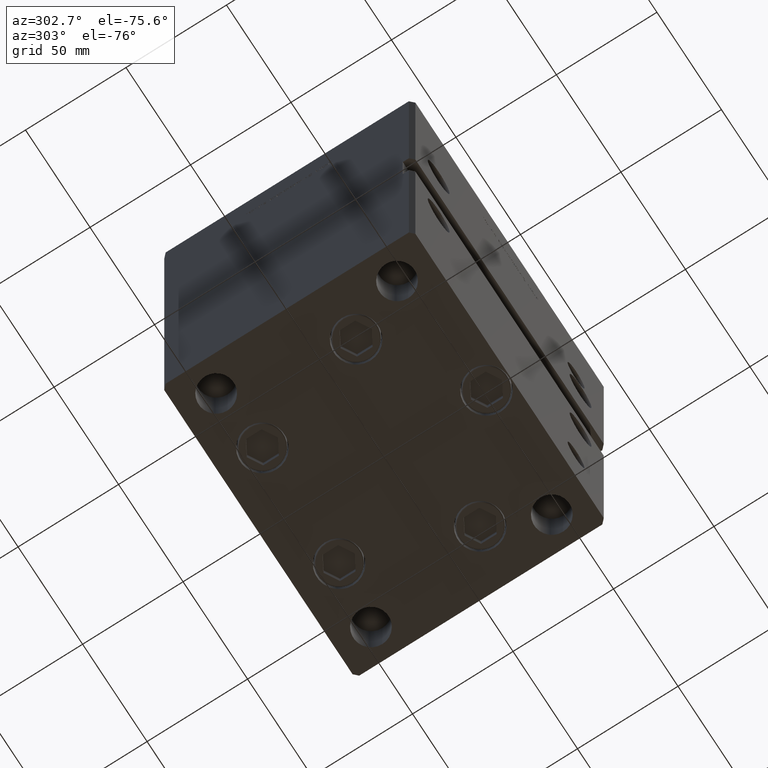
[diagram: clean part render]
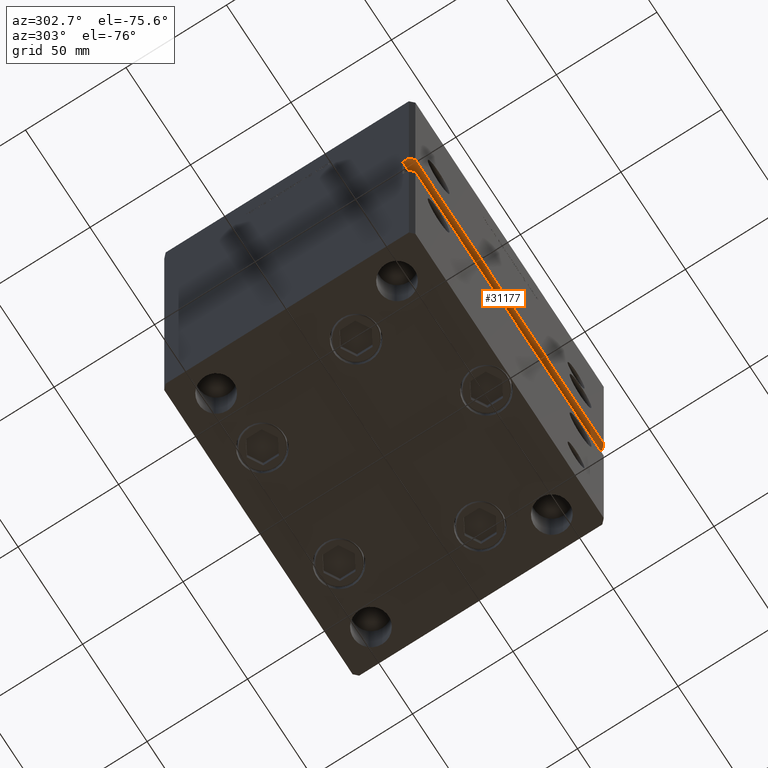
[diagram: same view with one face highlighted and labeled with its STEP entity id]
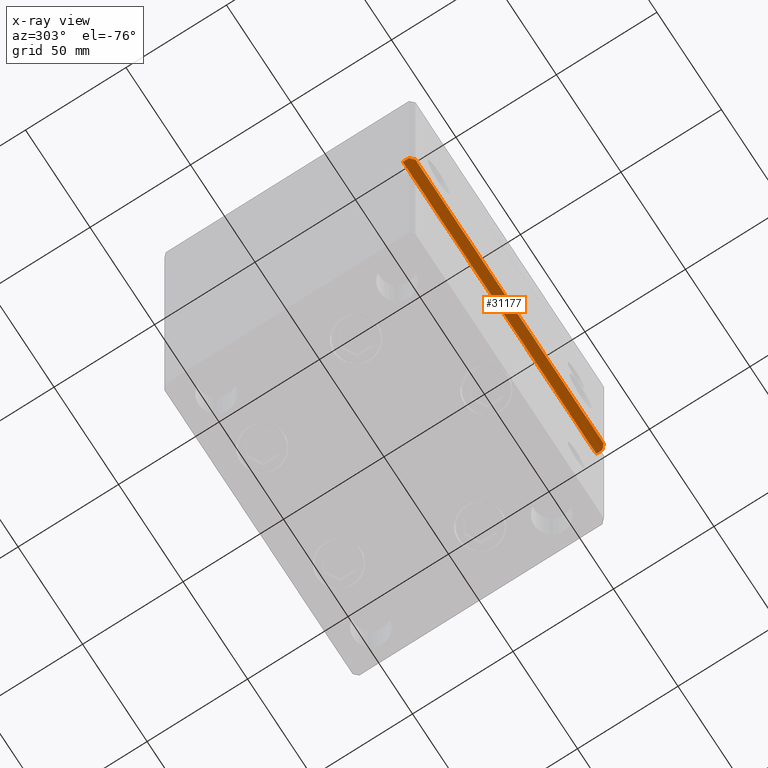
[diagram: x-ray of the same camera — body ghosted, the highlighted face saturated]
A machine part, auxiliary view. The second image highlights one B-rep face of the part: STEP entity #31177.
The next image is the same camera in x-ray: the body ghosted, the highlighted face saturated — about 8% of this face is hidden behind the body in this view.
In plain terms, the highlighted planar face has unit normal (0, 0, 1).
Its self-contained STEP definition (entity closure, byte-faithful):
#282 = LINE ( 'NONE', #17133, #50339 ) ;
#511 = CARTESIAN_POINT ( 'NONE',  ( -74.99999999999998579, -57.50000000000000000, 98.00000000000000000 ) ) ;
#2397 = CARTESIAN_POINT ( 'NONE',  ( 74.99999999999998579, -57.50000000000000000, 98.00000000000000000 ) ) ;
#3260 = LINE ( 'NONE', #19855, #39175 ) ;
#5137 = VERTEX_POINT ( 'NONE', #25410 ) ;
#5818 = AXIS2_PLACEMENT_3D ( 'NONE', #16791, #37709, #50033 ) ;
#6814 = CARTESIAN_POINT ( 'NONE',  ( -72.99999999999998579, -62.50000000000000000, 98.00000000000000000 ) ) ;
#8275 = EDGE_CURVE ( 'NONE', #46441, #25686, #26770, .T. ) ;
#8370 = ORIENTED_EDGE ( 'NONE', *, *, #9162, .T. ) ;
#8807 = LINE ( 'NONE', #511, #51154 ) ;
#9162 = EDGE_CURVE ( 'NONE', #9638, #28484, #10176, .T. ) ;
#9278 = FACE_OUTER_BOUND ( 'NONE', #34194, .T. ) ;
#9638 = VERTEX_POINT ( 'NONE', #30997 ) ;
#10176 = LINE ( 'NONE', #2397, #14206 ) ;
#10389 = VECTOR ( 'NONE', #14662, 1000.000000000000114 ) ;
#12928 = ORIENTED_EDGE ( 'NONE', *, *, #26286, .F. ) ;
#14206 = VECTOR ( 'NONE', #14718, 1000.000000000000000 ) ;
#14444 = DIRECTION ( 'NONE',  ( 0.7071067811865474617, -0.7071067811865474617, 0.000000000000000000 ) ) ;
#14662 = DIRECTION ( 'NONE',  ( -0.7071067811865474617, -0.7071067811865474617, 0.000000000000000000 ) ) ;
#14718 = DIRECTION ( 'NONE',  ( -0.000000000000000000, -1.000000000000000000, -0.000000000000000000 ) ) ;
#15015 = VECTOR ( 'NONE', #14444, 1000.000000000000114 ) ;
#15391 = EDGE_CURVE ( 'NONE', #48237, #25686, #282, .T. ) ;
#15767 = CARTESIAN_POINT ( 'NONE',  ( 72.99999999999998579, -62.50000000000000000, 98.00000000000000000 ) ) ;
#16791 = CARTESIAN_POINT ( 'NONE',  ( -74.99999999999998579, -57.50000000000000000, 98.00000000000000000 ) ) ;
#17133 = CARTESIAN_POINT ( 'NONE',  ( -74.99999999999998579, -62.50000000000000000, 98.00000000000000000 ) ) ;
#19348 = ORIENTED_EDGE ( 'NONE', *, *, #45605, .T. ) ;
#19593 = DIRECTION ( 'NONE',  ( -1.000000000000000000, -0.000000000000000000, -0.000000000000000000 ) ) ;
#19855 = CARTESIAN_POINT ( 'NONE',  ( -74.99999999999998579, -57.50000000000000000, 98.00000000000000000 ) ) ;
#22043 = ORIENTED_EDGE ( 'NONE', *, *, #15391, .T. ) ;
#25410 = CARTESIAN_POINT ( 'NONE',  ( -74.99999999999998579, -57.50000000000000000, 98.00000000000000000 ) ) ;
#25686 = VERTEX_POINT ( 'NONE', #6814 ) ;
#26286 = EDGE_CURVE ( 'NONE', #9638, #5137, #3260, .T. ) ;
#26620 = EDGE_CURVE ( 'NONE', #5137, #46441, #8807, .T. ) ;
#26770 = LINE ( 'NONE', #43133, #15015 ) ;
#28484 = VERTEX_POINT ( 'NONE', #40165 ) ;
#30997 = CARTESIAN_POINT ( 'NONE',  ( 74.99999999999998579, -57.50000000000000000, 98.00000000000000000 ) ) ;
#31177 = ADVANCED_FACE ( 'NONE', ( #9278 ), #50557, .F. ) ;
#34194 = EDGE_LOOP ( 'NONE', ( #41843, #12928, #8370, #19348, #22043, #35989 ) ) ;
#35989 = ORIENTED_EDGE ( 'NONE', *, *, #8275, .F. ) ;
#37709 = DIRECTION ( 'NONE',  ( 0.000000000000000000, 0.000000000000000000, 1.000000000000000000 ) ) ;
#38835 = CARTESIAN_POINT ( 'NONE',  ( -74.99999999999998579, -60.50000000000000000, 98.00000000000000000 ) ) ;
#39175 = VECTOR ( 'NONE', #19593, 1000.000000000000000 ) ;
#40165 = CARTESIAN_POINT ( 'NONE',  ( 74.99999999999998579, -60.50000000000000000, 98.00000000000000000 ) ) ;
#40988 = DIRECTION ( 'NONE',  ( -0.000000000000000000, -1.000000000000000000, -0.000000000000000000 ) ) ;
#41843 = ORIENTED_EDGE ( 'NONE', *, *, #26620, .F. ) ;
#42569 = CARTESIAN_POINT ( 'NONE',  ( 74.99999999999998579, -60.50000000000000000, 98.00000000000000000 ) ) ;
#43133 = CARTESIAN_POINT ( 'NONE',  ( -74.99999999999998579, -60.50000000000000000, 98.00000000000000000 ) ) ;
#45310 = DIRECTION ( 'NONE',  ( -1.000000000000000000, -0.000000000000000000, -0.000000000000000000 ) ) ;
#45605 = EDGE_CURVE ( 'NONE', #28484, #48237, #51389, .T. ) ;
#46441 = VERTEX_POINT ( 'NONE', #38835 ) ;
#48237 = VERTEX_POINT ( 'NONE', #15767 ) ;
#50033 = DIRECTION ( 'NONE',  ( 1.000000000000000000, 0.000000000000000000, -0.000000000000000000 ) ) ;
#50339 = VECTOR ( 'NONE', #45310, 1000.000000000000000 ) ;
#50557 = PLANE ( 'NONE',  #5818 ) ;
#51154 = VECTOR ( 'NONE', #40988, 1000.000000000000000 ) ;
#51389 = LINE ( 'NONE', #42569, #10389 ) ;